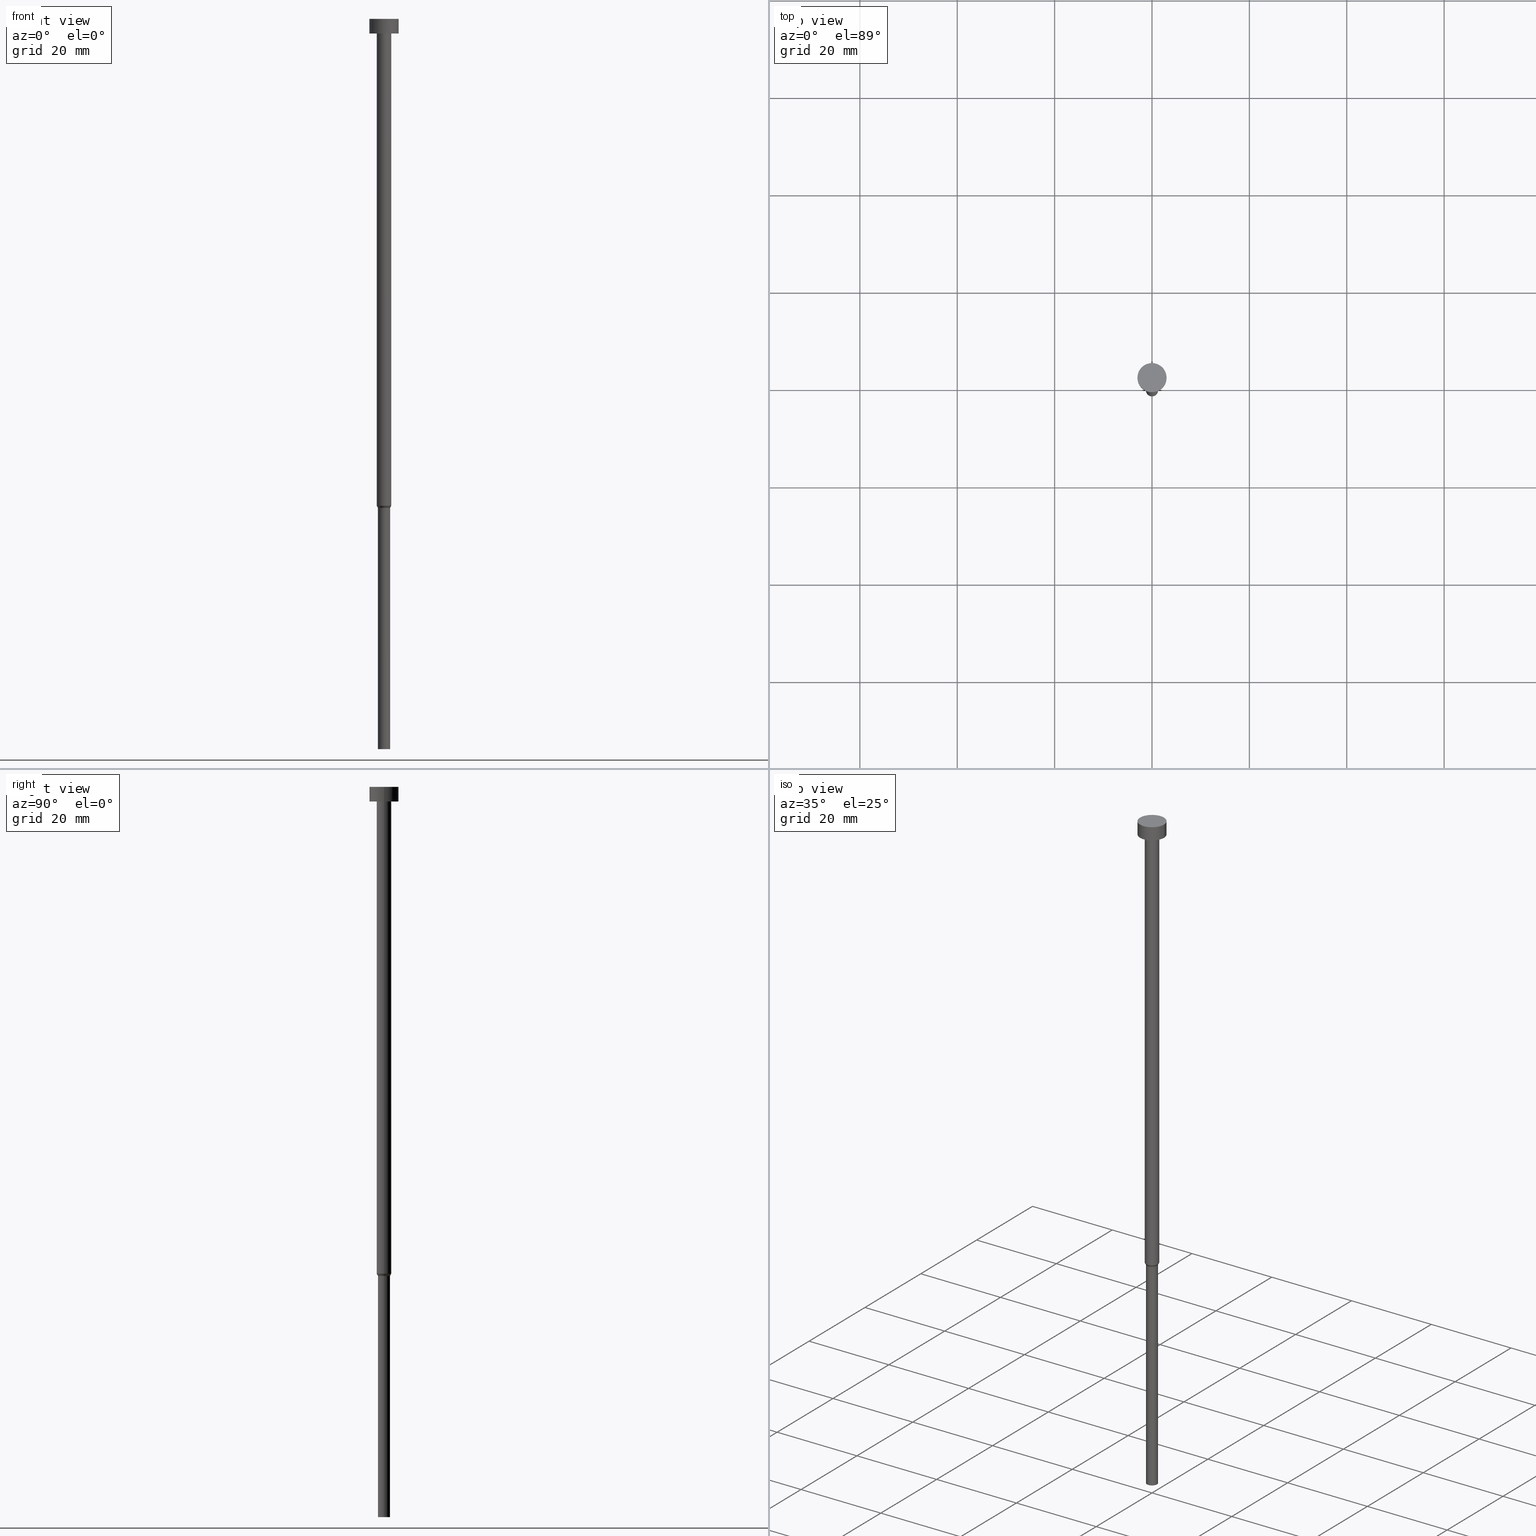
[diagram: canonical four-view strip — front | top / right | iso, engineering-drawing reading convention]
A machine part, canonical four-view strip (front | top / right | iso — engineering-drawing reading convention). The complete STEP part file that produces these views, byte-faithful:
ISO-10303-21;
HEADER;
FILE_DESCRIPTION (( 'STEP AP203' ),
    '1' );
FILE_NAME ('014f.STEP',
    '2023-02-13T08:56:51',
    ( '' ),
    ( '' ),
    'SwSTEP 2.0',
    'SolidWorks 2019',
    '' );
FILE_SCHEMA (( 'CONFIG_CONTROL_DESIGN' ));
ENDSEC;

DATA;
#1 = DIRECTION ( 'NONE',  ( 1.000000000000000000, 0.000000000000000000, 0.000000000000000000 ) ) ;
#2 = FACE_OUTER_BOUND ( 'NONE', #52, .T. ) ;
#3 = PERSON_AND_ORGANIZATION ( #280, #166 ) ;
#4 = CIRCLE ( 'NONE', #302, 3.000000000000000000 ) ;
#5 = CC_DESIGN_PERSON_AND_ORGANIZATION_ASSIGNMENT ( #3, #25, ( #285 ) ) ;
#6 = DIRECTION ( 'NONE',  ( 1.000000000000000000, 0.000000000000000000, 0.000000000000000000 ) ) ;
#7 = APPROVAL_PERSON_ORGANIZATION ( #250, #56, #169 ) ;
#8 = CARTESIAN_POINT ( 'NONE',  ( 0.000000000000000000, 0.000000000000000000, 0.000000000000000000 ) ) ;
#9 = EDGE_CURVE ( 'NONE', #242, #315, #59, .T. ) ;
#10 = CARTESIAN_POINT ( 'NONE',  ( 0.000000000000000000, 0.000000000000000000, -3.673940397442059868E-16 ) ) ;
#11 = VECTOR ( 'NONE', #190, 1000.000000000000000 ) ;
#12 = APPROVAL_PERSON_ORGANIZATION ( #131, #293, #137 ) ;
#13 = CYLINDRICAL_SURFACE ( 'NONE', #141, 1.500000000000000000 ) ;
#14 = ORIENTED_EDGE ( 'NONE', *, *, #261, .T. ) ;
#15 = CIRCLE ( 'NONE', #121, 1.250000000000000000 ) ;
#16 = LOCAL_TIME ( 9, 56, 51.00000000000000000, #47 ) ;
#17 = DIRECTION ( 'NONE',  ( -0.000000000000000000, -0.000000000000000000, 1.000000000000000000 ) ) ;
#18 = VERTEX_POINT ( 'NONE', #233 ) ;
#19 = CC_DESIGN_PERSON_AND_ORGANIZATION_ASSIGNMENT ( #98, #72, ( #22 ) ) ;
#20 = PERSON_AND_ORGANIZATION ( #280, #166 ) ;
#21 = VECTOR ( 'NONE', #274, 1000.000000000000000 ) ;
#22 = SECURITY_CLASSIFICATION ( '', '', #105 ) ;
#23 = CYLINDRICAL_SURFACE ( 'NONE', #54, 1.250000000000000000 ) ;
#24 = CARTESIAN_POINT ( 'NONE',  ( 0.000000000000000000, 0.000000000000000000, 0.000000000000000000 ) ) ;
#25 = PERSON_AND_ORGANIZATION_ROLE ( 'creator' ) ;
#26 = DIRECTION ( 'NONE',  ( 1.000000000000000000, 0.000000000000000000, 0.000000000000000000 ) ) ;
#27 = ORIENTED_EDGE ( 'NONE', *, *, #135, .F. ) ;
#28 = APPROVAL_PERSON_ORGANIZATION ( #325, #61, #161 ) ;
#29 = CARTESIAN_POINT ( 'NONE',  ( 0.000000000000000000, 0.000000000000000000, -3.000000000000000444 ) ) ;
#30 = DATE_AND_TIME ( #108, #34 ) ;
#31 = CARTESIAN_POINT ( 'NONE',  ( 0.000000000000000000, 0.000000000000000000, -100.4330127018922241 ) ) ;
#32 = VECTOR ( 'NONE', #36, 1000.000000000000000 ) ;
#33 = FACE_OUTER_BOUND ( 'NONE', #245, .T. ) ;
#34 = LOCAL_TIME ( 9, 56, 51.00000000000000000, #77 ) ;
#35 = DIRECTION ( 'NONE',  ( -0.000000000000000000, -0.000000000000000000, 1.000000000000000000 ) ) ;
#36 = DIRECTION ( 'NONE',  ( -0.000000000000000000, -0.000000000000000000, 1.000000000000000000 ) ) ;
#37 = ADVANCED_FACE ( 'NONE', ( #81 ), #279, .T. ) ;
#38 = CIRCLE ( 'NONE', #113, 1.500000000000000000 ) ;
#39 = CARTESIAN_POINT ( 'NONE',  ( 1.500000000000000000, 0.000000000000000000, -3.000000000000000444 ) ) ;
#40 = ORIENTED_EDGE ( 'NONE', *, *, #268, .F. ) ;
#41 = CC_DESIGN_APPROVAL ( #61, ( #156 ) ) ;
#42 = DIRECTION ( 'NONE',  ( 0.000000000000000000, 0.000000000000000000, -1.000000000000000000 ) ) ;
#43 = VERTEX_POINT ( 'NONE', #341 ) ;
#44 = CC_DESIGN_APPROVAL ( #56, ( #285 ) ) ;
#45 = ORIENTED_EDGE ( 'NONE', *, *, #9, .T. ) ;
#46 = CARTESIAN_POINT ( 'NONE',  ( 0.000000000000000000, 0.000000000000000000, 0.000000000000000000 ) ) ;
#47 = COORDINATED_UNIVERSAL_TIME_OFFSET ( 1, 0, .AHEAD. ) ;
#48 = DIRECTION ( 'NONE',  ( -0.000000000000000000, -0.000000000000000000, 1.000000000000000000 ) ) ;
#49 = ORIENTED_EDGE ( 'NONE', *, *, #181, .F. ) ;
#50 = AXIS2_PLACEMENT_3D ( 'NONE', #193, #48, #6 ) ;
#51 = DIRECTION ( 'NONE',  ( -0.000000000000000000, -0.000000000000000000, 1.000000000000000000 ) ) ;
#52 = EDGE_LOOP ( 'NONE', ( #330, #335, #14, #40 ) ) ;
#53 = ORIENTED_EDGE ( 'NONE', *, *, #184, .T. ) ;
#54 = AXIS2_PLACEMENT_3D ( 'NONE', #65, #349, #316 ) ;
#55 = CARTESIAN_POINT ( 'NONE',  ( 1.250000000000000000, 0.000000000000000000, -150.0000000000000000 ) ) ;
#56 = APPROVAL ( #132, 'NEUR�EN�' ) ;
#57 = EDGE_LOOP ( 'NONE', ( #147, #310 ) ) ;
#58 = ORIENTED_EDGE ( 'NONE', *, *, #299, .T. ) ;
#59 = CIRCLE ( 'NONE', #264, 1.250000000000000000 ) ;
#60 = VECTOR ( 'NONE', #227, 1000.000000000000000 ) ;
#61 = APPROVAL ( #263, 'NEUR�EN�' ) ;
#62 = CIRCLE ( 'NONE', #272, 1.500000000000000000 ) ;
#63 = VERTEX_POINT ( 'NONE', #175 ) ;
#64 = PERSON_AND_ORGANIZATION_ROLE ( 'design_owner' ) ;
#65 = CARTESIAN_POINT ( 'NONE',  ( 0.000000000000000000, 0.000000000000000000, 0.000000000000000000 ) ) ;
#66 = ORIENTED_EDGE ( 'NONE', *, *, #351, .T. ) ;
#67 = DATE_AND_TIME ( #94, #123 ) ;
#68 = CARTESIAN_POINT ( 'NONE',  ( 0.000000000000000000, 0.000000000000000000, -100.0000000000000000 ) ) ;
#69 = VECTOR ( 'NONE', #282, 1000.000000000000000 ) ;
#70 = CARTESIAN_POINT ( 'NONE',  ( 0.000000000000000000, 0.000000000000000000, -100.0000000000000000 ) ) ;
#71 = AXIS2_PLACEMENT_3D ( 'NONE', #10, #151, #201 ) ;
#72 = PERSON_AND_ORGANIZATION_ROLE ( 'classification_officer' ) ;
#73 = CARTESIAN_POINT ( 'NONE',  ( 0.000000000000000000, -3.000000000000000000, -3.000000000000000444 ) ) ;
#74 = ADVANCED_FACE ( 'NONE', ( #238 ), #314, .T. ) ;
#75 = DIRECTION ( 'NONE',  ( -0.000000000000000000, -0.000000000000000000, 1.000000000000000000 ) ) ;
#76 = DIRECTION ( 'NONE',  ( 1.000000000000000000, 0.000000000000000000, 0.000000000000000000 ) ) ;
#77 = COORDINATED_UNIVERSAL_TIME_OFFSET ( 1, 0, .AHEAD. ) ;
#78 = CARTESIAN_POINT ( 'NONE',  ( 0.000000000000000000, 0.000000000000000000, -3.000000000000000444 ) ) ;
#79 = MANIFOLD_SOLID_BREP ( 'Rotovat1', #230 ) ;
#80 = AXIS2_PLACEMENT_3D ( 'NONE', #70, #246, #267 ) ;
#81 = FACE_OUTER_BOUND ( 'NONE', #178, .T. ) ;
#82 = CARTESIAN_POINT ( 'NONE',  ( -3.000000000000000000, 3.673940397442059868E-16, 0.000000000000000000 ) ) ;
#83 = CARTESIAN_POINT ( 'NONE',  ( -1.250000000000000000, 1.530808498934191571E-16, 0.000000000000000000 ) ) ;
#84 = CONICAL_SURFACE ( 'NONE', #277, 1.500000000000000000, 0.5235987755982968173 ) ;
#85 = CARTESIAN_POINT ( 'NONE',  ( 0.000000000000000000, 0.000000000000000000, -150.0000000000000000 ) ) ;
#86 = ORIENTED_EDGE ( 'NONE', *, *, #351, .F. ) ;
#87 = CARTESIAN_POINT ( 'NONE',  ( -1.500000000000000000, 1.836970198721029934E-16, -100.0000000000000000 ) ) ;
#88 = VERTEX_POINT ( 'NONE', #116 ) ;
#89 = CC_DESIGN_DATE_AND_TIME_ASSIGNMENT ( #162, #331, ( #22 ) ) ;
#90 =( NAMED_UNIT ( * ) SI_UNIT ( $, .STERADIAN. ) SOLID_ANGLE_UNIT ( ) );
#91 = DIRECTION ( 'NONE',  ( -0.000000000000000000, -0.000000000000000000, 1.000000000000000000 ) ) ;
#92 = AXIS2_PLACEMENT_3D ( 'NONE', #46, #163, #271 ) ;
#93 = VERTEX_POINT ( 'NONE', #111 ) ;
#94 = CALENDAR_DATE ( 2023, 13, 2 ) ;
#95 = COORDINATED_UNIVERSAL_TIME_OFFSET ( 1, 0, .AHEAD. ) ;
#96 = CARTESIAN_POINT ( 'NONE',  ( 0.000000000000000000, 0.000000000000000000, -150.0000000000000000 ) ) ;
#97 = CIRCLE ( 'NONE', #129, 1.250000000000000000 ) ;
#98 = PERSON_AND_ORGANIZATION ( #280, #166 ) ;
#99 = DIRECTION ( 'NONE',  ( 1.000000000000000000, 0.000000000000000000, 0.000000000000000000 ) ) ;
#100 = EDGE_CURVE ( 'NONE', #350, #18, #203, .T. ) ;
#101 = LINE ( 'NONE', #278, #21 ) ;
#102 = VERTEX_POINT ( 'NONE', #39 ) ;
#103 = ADVANCED_FACE ( 'NONE', ( #152 ), #13, .T. ) ;
#104 = CARTESIAN_POINT ( 'NONE',  ( 0.000000000000000000, 0.000000000000000000, 0.000000000000000000 ) ) ;
#105 = SECURITY_CLASSIFICATION_LEVEL ( 'unclassified' ) ;
#106 = CARTESIAN_POINT ( 'NONE',  ( 0.000000000000000000, 0.000000000000000000, -100.0000000000000000 ) ) ;
#107 = CIRCLE ( 'NONE', #71, 3.000000000000000000 ) ;
#108 = CALENDAR_DATE ( 2023, 13, 2 ) ;
#109 = DIRECTION ( 'NONE',  ( 1.000000000000000000, 0.000000000000000000, 0.000000000000000000 ) ) ;
#110 = EDGE_CURVE ( 'NONE', #306, #211, #343, .T. ) ;
#111 = CARTESIAN_POINT ( 'NONE',  ( -1.500000000000000000, 1.836970198721029934E-16, -3.000000000000000444 ) ) ;
#112 = ADVANCED_FACE ( 'NONE', ( #213 ), #84, .T. ) ;
#113 = AXIS2_PLACEMENT_3D ( 'NONE', #329, #224, #194 ) ;
#114 = ORIENTED_EDGE ( 'NONE', *, *, #184, .F. ) ;
#115 = PRODUCT_RELATED_PRODUCT_CATEGORY ( 'detail', '', ( #324 ) ) ;
#116 = CARTESIAN_POINT ( 'NONE',  ( 3.000000000000000000, 0.000000000000000000, -3.673940397442059868E-16 ) ) ;
#117 = ORIENTED_EDGE ( 'NONE', *, *, #347, .F. ) ;
#118 = DIRECTION ( 'NONE',  ( -0.000000000000000000, -0.000000000000000000, 1.000000000000000000 ) ) ;
#119 = VECTOR ( 'NONE', #318, 1000.000000000000114 ) ;
#120 = ORIENTED_EDGE ( 'NONE', *, *, #9, .F. ) ;
#121 = AXIS2_PLACEMENT_3D ( 'NONE', #31, #225, #172 ) ;
#122 = DIRECTION ( 'NONE',  ( 1.000000000000000000, 0.000000000000000000, 0.000000000000000000 ) ) ;
#123 = LOCAL_TIME ( 9, 56, 51.00000000000000000, #95 ) ;
#124 = DIRECTION ( 'NONE',  ( 1.000000000000000000, 0.000000000000000000, 0.000000000000000000 ) ) ;
#125 = EDGE_CURVE ( 'NONE', #255, #211, #182, .T. ) ;
#126 = DIRECTION ( 'NONE',  ( -0.000000000000000000, -0.000000000000000000, 1.000000000000000000 ) ) ;
#127 = MECHANICAL_CONTEXT ( 'NONE', #212, 'mechanical' ) ;
#128 = DIRECTION ( 'NONE',  ( 1.000000000000000000, 0.000000000000000000, 0.000000000000000000 ) ) ;
#129 = AXIS2_PLACEMENT_3D ( 'NONE', #96, #17, #124 ) ;
#130 = EDGE_LOOP ( 'NONE', ( #339, #207 ) ) ;
#131 = PERSON_AND_ORGANIZATION ( #280, #166 ) ;
#132 = APPROVAL_STATUS ( 'not_yet_approved' ) ;
#133 = FACE_OUTER_BOUND ( 'NONE', #244, .T. ) ;
#134 = AXIS2_PLACEMENT_3D ( 'NONE', #104, #51, #26 ) ;
#135 = EDGE_CURVE ( 'NONE', #63, #306, #322, .T. ) ;
#136 = PRODUCT_DEFINITION_SHAPE ( 'NONE', 'NONE',  #156 ) ;
#137 = APPROVAL_ROLE ( '' ) ;
#138 = DIRECTION ( 'NONE',  ( -1.000000000000000000, 0.000000000000000000, -0.000000000000000000 ) ) ;
#139 = CYLINDRICAL_SURFACE ( 'NONE', #134, 1.500000000000000000 ) ;
#140 = ORIENTED_EDGE ( 'NONE', *, *, #110, .F. ) ;
#141 = AXIS2_PLACEMENT_3D ( 'NONE', #24, #126, #157 ) ;
#142 = ADVANCED_FACE ( 'NONE', ( #210 ), #23, .T. ) ;
#143 = CARTESIAN_POINT ( 'NONE',  ( 1.250000000000000000, 0.000000000000000000, 0.000000000000000000 ) ) ;
#144 = AXIS2_PLACEMENT_3D ( 'NONE', #297, #197, #1 ) ;
#145 = LOCAL_TIME ( 9, 56, 51.00000000000000000, #226 ) ;
#146 = CYLINDRICAL_SURFACE ( 'NONE', #92, 1.250000000000000000 ) ;
#147 = ORIENTED_EDGE ( 'NONE', *, *, #292, .F. ) ;
#148 = DIRECTION ( 'NONE',  ( 1.000000000000000000, 0.000000000000000000, 0.000000000000000000 ) ) ;
#149 = DESIGN_CONTEXT ( 'detailed design', #317, 'design' ) ;
#150 = AXIS2_PLACEMENT_3D ( 'NONE', #159, #346, #217 ) ;
#151 = DIRECTION ( 'NONE',  ( -0.000000000000000000, -0.000000000000000000, 1.000000000000000000 ) ) ;
#152 = FACE_OUTER_BOUND ( 'NONE', #177, .T. ) ;
#153 = ORIENTED_EDGE ( 'NONE', *, *, #347, .T. ) ;
#154 = ADVANCED_BREP_SHAPE_REPRESENTATION ( '014f', ( #79, #195 ), #248 ) ;
#155 = EDGE_LOOP ( 'NONE', ( #188, #342, #86, #237 ) ) ;
#156 = PRODUCT_DEFINITION ( 'NEZN�M�', '', #285, #149 ) ;
#157 = DIRECTION ( 'NONE',  ( 1.000000000000000000, 0.000000000000000000, 0.000000000000000000 ) ) ;
#158 = ORIENTED_EDGE ( 'NONE', *, *, #259, .T. ) ;
#159 = CARTESIAN_POINT ( 'NONE',  ( 0.000000000000000000, 0.000000000000000000, -100.4330127018922241 ) ) ;
#160 = EDGE_LOOP ( 'NONE', ( #344, #301, #354, #198 ) ) ;
#161 = APPROVAL_ROLE ( '' ) ;
#162 = DATE_AND_TIME ( #275, #145 ) ;
#163 = DIRECTION ( 'NONE',  ( -0.000000000000000000, -0.000000000000000000, 1.000000000000000000 ) ) ;
#164 = CARTESIAN_POINT ( 'NONE',  ( -1.500000000000000000, 1.836970198721029934E-16, -100.0000000000000000 ) ) ;
#165 = AXIS2_PLACEMENT_3D ( 'NONE', #73, #303, #138 ) ;
#166 = ORGANIZATION ( 'NEUR�EN�', 'NEUR�EN�', '' ) ;
#167 = CARTESIAN_POINT ( 'NONE',  ( 0.000000000000000000, 0.000000000000000000, -3.000000000000000444 ) ) ;
#168 = ORIENTED_EDGE ( 'NONE', *, *, #307, .F. ) ;
#169 = APPROVAL_ROLE ( '' ) ;
#170 = LINE ( 'NONE', #334, #183 ) ;
#171 = VECTOR ( 'NONE', #296, 1000.000000000000114 ) ;
#172 = DIRECTION ( 'NONE',  ( 1.000000000000000000, 0.000000000000000000, 0.000000000000000000 ) ) ;
#173 = DIRECTION ( 'NONE',  ( 1.000000000000000000, 0.000000000000000000, 0.000000000000000000 ) ) ;
#174 = ADVANCED_FACE ( 'NONE', ( #291 ), #355, .T. ) ;
#175 = CARTESIAN_POINT ( 'NONE',  ( 1.250000000000000000, 0.000000000000000000, -100.4330127018922241 ) ) ;
#176 = DIRECTION ( 'NONE',  ( -0.000000000000000000, -0.000000000000000000, 1.000000000000000000 ) ) ;
#177 = EDGE_LOOP ( 'NONE', ( #236, #262, #323, #180 ) ) ;
#178 = EDGE_LOOP ( 'NONE', ( #66, #286 ) ) ;
#179 = ORIENTED_EDGE ( 'NONE', *, *, #181, .T. ) ;
#180 = ORIENTED_EDGE ( 'NONE', *, *, #261, .F. ) ;
#181 = EDGE_CURVE ( 'NONE', #315, #242, #97, .T. ) ;
#182 = LINE ( 'NONE', #87, #119 ) ;
#183 = VECTOR ( 'NONE', #276, 1000.000000000000000 ) ;
#184 = EDGE_CURVE ( 'NONE', #63, #255, #231, .T. ) ;
#185 = FACE_BOUND ( 'NONE', #130, .T. ) ;
#186 = APPLICATION_PROTOCOL_DEFINITION ( 'international standard', 'config_control_design', 1994, #317 ) ;
#187 = CC_DESIGN_PERSON_AND_ORGANIZATION_ASSIGNMENT ( #269, #192, ( #285 ) ) ;
#188 = ORIENTED_EDGE ( 'NONE', *, *, #292, .T. ) ;
#189 = FACE_OUTER_BOUND ( 'NONE', #57, .T. ) ;
#190 = DIRECTION ( 'NONE',  ( -0.000000000000000000, -0.000000000000000000, 1.000000000000000000 ) ) ;
#191 = ADVANCED_FACE ( 'NONE', ( #185, #189 ), #219, .T. ) ;
#192 = PERSON_AND_ORGANIZATION_ROLE ( 'design_supplier' ) ;
#193 = CARTESIAN_POINT ( 'NONE',  ( 0.000000000000000000, 0.000000000000000000, -3.673940397442059868E-16 ) ) ;
#194 = DIRECTION ( 'NONE',  ( 1.000000000000000000, 0.000000000000000000, 0.000000000000000000 ) ) ;
#195 = AXIS2_PLACEMENT_3D ( 'NONE', #345, #289, #122 ) ;
#196 = APPROVAL_STATUS ( 'not_yet_approved' ) ;
#197 = DIRECTION ( 'NONE',  ( -0.000000000000000000, -0.000000000000000000, 1.000000000000000000 ) ) ;
#198 = ORIENTED_EDGE ( 'NONE', *, *, #208, .F. ) ;
#199 = CC_DESIGN_PERSON_AND_ORGANIZATION_ASSIGNMENT ( #216, #64, ( #324 ) ) ;
#200 = DIRECTION ( 'NONE',  ( 1.000000000000000000, 0.000000000000000000, 0.000000000000000000 ) ) ;
#201 = DIRECTION ( 'NONE',  ( 1.000000000000000000, 0.000000000000000000, 0.000000000000000000 ) ) ;
#202 = CYLINDRICAL_SURFACE ( 'NONE', #266, 3.000000000000000000 ) ;
#203 = LINE ( 'NONE', #82, #69 ) ;
#204 = DIRECTION ( 'NONE',  ( 0.000000000000000000, -0.000000000000000000, 1.000000000000000000 ) ) ;
#205 = ORIENTED_EDGE ( 'NONE', *, *, #100, .F. ) ;
#206 = DIRECTION ( 'NONE',  ( 1.000000000000000000, 0.000000000000000000, 0.000000000000000000 ) ) ;
#207 = ORIENTED_EDGE ( 'NONE', *, *, #268, .T. ) ;
#208 = EDGE_CURVE ( 'NONE', #211, #306, #62, .T. ) ;
#209 =( LENGTH_UNIT ( ) NAMED_UNIT ( * ) SI_UNIT ( .MILLI., .METRE. ) );
#210 = FACE_OUTER_BOUND ( 'NONE', #312, .T. ) ;
#211 = VERTEX_POINT ( 'NONE', #164 ) ;
#212 = APPLICATION_CONTEXT ( 'configuration controlled 3d designs of mechanical parts and assemblies' ) ;
#213 = FACE_OUTER_BOUND ( 'NONE', #160, .T. ) ;
#214 = CIRCLE ( 'NONE', #50, 3.000000000000000000 ) ;
#215 = EDGE_CURVE ( 'NONE', #211, #93, #101, .T. ) ;
#216 = PERSON_AND_ORGANIZATION ( #280, #166 ) ;
#217 = DIRECTION ( 'NONE',  ( 1.000000000000000000, 0.000000000000000000, 0.000000000000000000 ) ) ;
#218 = DATE_TIME_ROLE ( 'creation_date' ) ;
#219 = PLANE ( 'NONE',  #165 ) ;
#220 = AXIS2_PLACEMENT_3D ( 'NONE', #353, #42, #288 ) ;
#221 = SHAPE_DEFINITION_REPRESENTATION ( #136, #154 ) ;
#222 = AXIS2_PLACEMENT_3D ( 'NONE', #167, #223, #99 ) ;
#223 = DIRECTION ( 'NONE',  ( -0.000000000000000000, -0.000000000000000000, 1.000000000000000000 ) ) ;
#224 = DIRECTION ( 'NONE',  ( -0.000000000000000000, -0.000000000000000000, 1.000000000000000000 ) ) ;
#225 = DIRECTION ( 'NONE',  ( -0.000000000000000000, -0.000000000000000000, 1.000000000000000000 ) ) ;
#226 = COORDINATED_UNIVERSAL_TIME_OFFSET ( 1, 0, .AHEAD. ) ;
#227 = DIRECTION ( 'NONE',  ( -0.000000000000000000, -0.000000000000000000, 1.000000000000000000 ) ) ;
#228 = ORIENTED_EDGE ( 'NONE', *, *, #125, .T. ) ;
#229 = DIRECTION ( 'NONE',  ( -0.000000000000000000, -0.000000000000000000, 1.000000000000000000 ) ) ;
#230 = CLOSED_SHELL ( 'NONE', ( #74, #103, #240, #321, #174, #142, #112, #232, #191, #328, #37 ) ) ;
#231 = CIRCLE ( 'NONE', #150, 1.250000000000000000 ) ;
#232 = ADVANCED_FACE ( 'NONE', ( #2 ), #139, .T. ) ;
#233 = CARTESIAN_POINT ( 'NONE',  ( -3.000000000000000000, 3.673940397442059868E-16, -3.673940397442059868E-16 ) ) ;
#234 = DIRECTION ( 'NONE',  ( 1.000000000000000000, 0.000000000000000000, 0.000000000000000000 ) ) ;
#235 = LINE ( 'NONE', #83, #32 ) ;
#236 = ORIENTED_EDGE ( 'NONE', *, *, #110, .T. ) ;
#237 = ORIENTED_EDGE ( 'NONE', *, *, #249, .F. ) ;
#238 = FACE_OUTER_BOUND ( 'NONE', #155, .T. ) ;
#239 =( NAMED_UNIT ( * ) PLANE_ANGLE_UNIT ( ) SI_UNIT ( $, .RADIAN. ) );
#240 = ADVANCED_FACE ( 'NONE', ( #332 ), #338, .T. ) ;
#241 = CARTESIAN_POINT ( 'NONE',  ( 1.500000000000000000, 0.000000000000000000, -100.0000000000000000 ) ) ;
#242 = VERTEX_POINT ( 'NONE', #308 ) ;
#243 = PERSON_AND_ORGANIZATION_ROLE ( 'creator' ) ;
#244 = EDGE_LOOP ( 'NONE', ( #205, #158, #258, #168 ) ) ;
#245 = EDGE_LOOP ( 'NONE', ( #179, #153, #114, #284 ) ) ;
#246 = DIRECTION ( 'NONE',  ( -0.000000000000000000, -0.000000000000000000, 1.000000000000000000 ) ) ;
#247 = DATE_AND_TIME ( #270, #16 ) ;
#248 =( GEOMETRIC_REPRESENTATION_CONTEXT ( 3 ) GLOBAL_UNCERTAINTY_ASSIGNED_CONTEXT ( ( #348 ) ) GLOBAL_UNIT_ASSIGNED_CONTEXT ( ( #209, #239, #90 ) ) REPRESENTATION_CONTEXT ( 'NONE', 'WORKASPACE' ) );
#249 = EDGE_CURVE ( 'NONE', #43, #88, #300, .T. ) ;
#250 = PERSON_AND_ORGANIZATION ( #280, #166 ) ;
#251 = DIRECTION ( 'NONE',  ( -0.000000000000000000, -0.000000000000000000, 1.000000000000000000 ) ) ;
#252 = AXIS2_PLACEMENT_3D ( 'NONE', #8, #176, #206 ) ;
#253 = CARTESIAN_POINT ( 'NONE',  ( 1.500000000000000000, 0.000000000000000000, -100.0000000000000000 ) ) ;
#254 = CARTESIAN_POINT ( 'NONE',  ( -3.000000000000000000, 3.673940397442059868E-16, -3.000000000000000444 ) ) ;
#255 = VERTEX_POINT ( 'NONE', #273 ) ;
#256 = AXIS2_PLACEMENT_3D ( 'NONE', #29, #229, #200 ) ;
#257 = CC_DESIGN_SECURITY_CLASSIFICATION ( #22, ( #285 ) ) ;
#258 = ORIENTED_EDGE ( 'NONE', *, *, #249, .T. ) ;
#259 = EDGE_CURVE ( 'NONE', #350, #43, #4, .T. ) ;
#260 = CALENDAR_DATE ( 2023, 13, 2 ) ;
#261 = EDGE_CURVE ( 'NONE', #306, #102, #170, .T. ) ;
#262 = ORIENTED_EDGE ( 'NONE', *, *, #215, .T. ) ;
#263 = APPROVAL_STATUS ( 'not_yet_approved' ) ;
#264 = AXIS2_PLACEMENT_3D ( 'NONE', #85, #35, #173 ) ;
#265 = EDGE_CURVE ( 'NONE', #255, #63, #15, .T. ) ;
#266 = AXIS2_PLACEMENT_3D ( 'NONE', #340, #118, #234 ) ;
#267 = DIRECTION ( 'NONE',  ( 1.000000000000000000, 0.000000000000000000, 0.000000000000000000 ) ) ;
#268 = EDGE_CURVE ( 'NONE', #93, #102, #38, .T. ) ;
#269 = PERSON_AND_ORGANIZATION ( #280, #166 ) ;
#270 = CALENDAR_DATE ( 2023, 13, 2 ) ;
#271 = DIRECTION ( 'NONE',  ( 1.000000000000000000, 0.000000000000000000, 0.000000000000000000 ) ) ;
#272 = AXIS2_PLACEMENT_3D ( 'NONE', #106, #251, #76 ) ;
#273 = CARTESIAN_POINT ( 'NONE',  ( -1.250000000000000000, 1.530808498934191571E-16, -100.4330127018922241 ) ) ;
#274 = DIRECTION ( 'NONE',  ( -0.000000000000000000, -0.000000000000000000, 1.000000000000000000 ) ) ;
#275 = CALENDAR_DATE ( 2023, 13, 2 ) ;
#276 = DIRECTION ( 'NONE',  ( -0.000000000000000000, -0.000000000000000000, 1.000000000000000000 ) ) ;
#277 = AXIS2_PLACEMENT_3D ( 'NONE', #68, #91, #128 ) ;
#278 = CARTESIAN_POINT ( 'NONE',  ( -1.500000000000000000, 1.836970198721029934E-16, 0.000000000000000000 ) ) ;
#279 = PLANE ( 'NONE',  #313 ) ;
#280 = PERSON ( 'NEUR�EN�', 'NEUR�EN�', 'NEUR�EN�', ('NEUR�EN�'), ('NEUR�EN�'), ('NEUR�EN�') ) ;
#281 = EDGE_LOOP ( 'NONE', ( #49, #120 ) ) ;
#282 = DIRECTION ( 'NONE',  ( -0.000000000000000000, -0.000000000000000000, 1.000000000000000000 ) ) ;
#283 = CC_DESIGN_DATE_AND_TIME_ASSIGNMENT ( #67, #218, ( #156 ) ) ;
#284 = ORIENTED_EDGE ( 'NONE', *, *, #299, .F. ) ;
#285 = PRODUCT_DEFINITION_FORMATION_WITH_SPECIFIED_SOURCE ( 'LIBOVOLN�', '', #324, .NOT_KNOWN. ) ;
#286 = ORIENTED_EDGE ( 'NONE', *, *, #307, .T. ) ;
#287 = COORDINATED_UNIVERSAL_TIME_OFFSET ( 1, 0, .AHEAD. ) ;
#288 = DIRECTION ( 'NONE',  ( -1.000000000000000000, 0.000000000000000000, -0.000000000000000000 ) ) ;
#289 = DIRECTION ( 'NONE',  ( 0.000000000000000000, 0.000000000000000000, 1.000000000000000000 ) ) ;
#290 = APPROVAL_DATE_TIME ( #294, #61 ) ;
#291 = FACE_OUTER_BOUND ( 'NONE', #281, .T. ) ;
#292 = EDGE_CURVE ( 'NONE', #43, #350, #319, .T. ) ;
#293 = APPROVAL ( #196, 'NEUR�EN�' ) ;
#294 = DATE_AND_TIME ( #260, #295 ) ;
#295 = LOCAL_TIME ( 9, 56, 51.00000000000000000, #287 ) ;
#296 = DIRECTION ( 'NONE',  ( 0.4999999999999981681, 0.000000000000000000, 0.8660254037844395958 ) ) ;
#297 = CARTESIAN_POINT ( 'NONE',  ( 0.000000000000000000, 0.000000000000000000, -100.0000000000000000 ) ) ;
#298 = APPROVAL_DATE_TIME ( #247, #293 ) ;
#299 = EDGE_CURVE ( 'NONE', #315, #63, #327, .T. ) ;
#300 = LINE ( 'NONE', #305, #60 ) ;
#301 = ORIENTED_EDGE ( 'NONE', *, *, #265, .T. ) ;
#302 = AXIS2_PLACEMENT_3D ( 'NONE', #78, #75, #109 ) ;
#303 = DIRECTION ( 'NONE',  ( 0.000000000000000000, 0.000000000000000000, -1.000000000000000000 ) ) ;
#304 = ORIENTED_EDGE ( 'NONE', *, *, #265, .F. ) ;
#305 = CARTESIAN_POINT ( 'NONE',  ( 3.000000000000000000, 0.000000000000000000, 0.000000000000000000 ) ) ;
#306 = VERTEX_POINT ( 'NONE', #253 ) ;
#307 = EDGE_CURVE ( 'NONE', #18, #88, #214, .T. ) ;
#308 = CARTESIAN_POINT ( 'NONE',  ( -1.250000000000000000, 1.530808498934191571E-16, -150.0000000000000000 ) ) ;
#309 = EDGE_CURVE ( 'NONE', #102, #93, #326, .T. ) ;
#310 = ORIENTED_EDGE ( 'NONE', *, *, #259, .F. ) ;
#311 = CARTESIAN_POINT ( 'NONE',  ( 0.000000000000000000, 0.000000000000000000, -1.836970198721029934E-16 ) ) ;
#312 = EDGE_LOOP ( 'NONE', ( #117, #45, #58, #304 ) ) ;
#313 = AXIS2_PLACEMENT_3D ( 'NONE', #311, #204, #148 ) ;
#314 = CYLINDRICAL_SURFACE ( 'NONE', #252, 3.000000000000000000 ) ;
#315 = VERTEX_POINT ( 'NONE', #55 ) ;
#316 = DIRECTION ( 'NONE',  ( 1.000000000000000000, 0.000000000000000000, 0.000000000000000000 ) ) ;
#317 = APPLICATION_CONTEXT ( 'configuration controlled 3d designs of mechanical parts and assemblies' ) ;
#318 = DIRECTION ( 'NONE',  ( -0.4999999999999981681, 6.123233995736742617E-17, 0.8660254037844395958 ) ) ;
#319 = CIRCLE ( 'NONE', #222, 3.000000000000000000 ) ;
#320 = CC_DESIGN_APPROVAL ( #293, ( #22 ) ) ;
#321 = ADVANCED_FACE ( 'NONE', ( #33 ), #146, .T. ) ;
#322 = LINE ( 'NONE', #241, #171 ) ;
#323 = ORIENTED_EDGE ( 'NONE', *, *, #309, .F. ) ;
#324 = PRODUCT ( '014f', '014f', '', ( #127 ) ) ;
#325 = PERSON_AND_ORGANIZATION ( #280, #166 ) ;
#326 = CIRCLE ( 'NONE', #256, 1.500000000000000000 ) ;
#327 = LINE ( 'NONE', #143, #11 ) ;
#328 = ADVANCED_FACE ( 'NONE', ( #133 ), #202, .T. ) ;
#329 = CARTESIAN_POINT ( 'NONE',  ( 0.000000000000000000, 0.000000000000000000, -3.000000000000000444 ) ) ;
#330 = ORIENTED_EDGE ( 'NONE', *, *, #215, .F. ) ;
#331 = DATE_TIME_ROLE ( 'classification_date' ) ;
#332 = FACE_OUTER_BOUND ( 'NONE', #337, .T. ) ;
#333 = APPROVAL_DATE_TIME ( #30, #56 ) ;
#334 = CARTESIAN_POINT ( 'NONE',  ( 1.500000000000000000, 0.000000000000000000, 0.000000000000000000 ) ) ;
#335 = ORIENTED_EDGE ( 'NONE', *, *, #208, .T. ) ;
#336 = CC_DESIGN_PERSON_AND_ORGANIZATION_ASSIGNMENT ( #20, #243, ( #156 ) ) ;
#337 = EDGE_LOOP ( 'NONE', ( #53, #228, #140, #27 ) ) ;
#338 = CONICAL_SURFACE ( 'NONE', #144, 1.500000000000000000, 0.5235987755982968173 ) ;
#339 = ORIENTED_EDGE ( 'NONE', *, *, #309, .T. ) ;
#340 = CARTESIAN_POINT ( 'NONE',  ( 0.000000000000000000, 0.000000000000000000, 0.000000000000000000 ) ) ;
#341 = CARTESIAN_POINT ( 'NONE',  ( 3.000000000000000000, 0.000000000000000000, -3.000000000000000444 ) ) ;
#342 = ORIENTED_EDGE ( 'NONE', *, *, #100, .T. ) ;
#343 = CIRCLE ( 'NONE', #80, 1.500000000000000000 ) ;
#344 = ORIENTED_EDGE ( 'NONE', *, *, #125, .F. ) ;
#345 = CARTESIAN_POINT ( 'NONE',  ( 0.000000000000000000, 0.000000000000000000, 0.000000000000000000 ) ) ;
#346 = DIRECTION ( 'NONE',  ( -0.000000000000000000, -0.000000000000000000, 1.000000000000000000 ) ) ;
#347 = EDGE_CURVE ( 'NONE', #242, #255, #235, .T. ) ;
#348 = UNCERTAINTY_MEASURE_WITH_UNIT (LENGTH_MEASURE( 1.000000000000000082E-05 ), #209, 'distance_accuracy_value', 'NONE');
#349 = DIRECTION ( 'NONE',  ( -0.000000000000000000, -0.000000000000000000, 1.000000000000000000 ) ) ;
#350 = VERTEX_POINT ( 'NONE', #254 ) ;
#351 = EDGE_CURVE ( 'NONE', #88, #18, #107, .T. ) ;
#352 = APPLICATION_PROTOCOL_DEFINITION ( 'international standard', 'config_control_design', 1994, #212 ) ;
#353 = CARTESIAN_POINT ( 'NONE',  ( 0.000000000000000000, 0.000000000000000000, -150.0000000000000000 ) ) ;
#354 = ORIENTED_EDGE ( 'NONE', *, *, #135, .T. ) ;
#355 = PLANE ( 'NONE',  #220 ) ;
ENDSEC;
END-ISO-10303-21;
